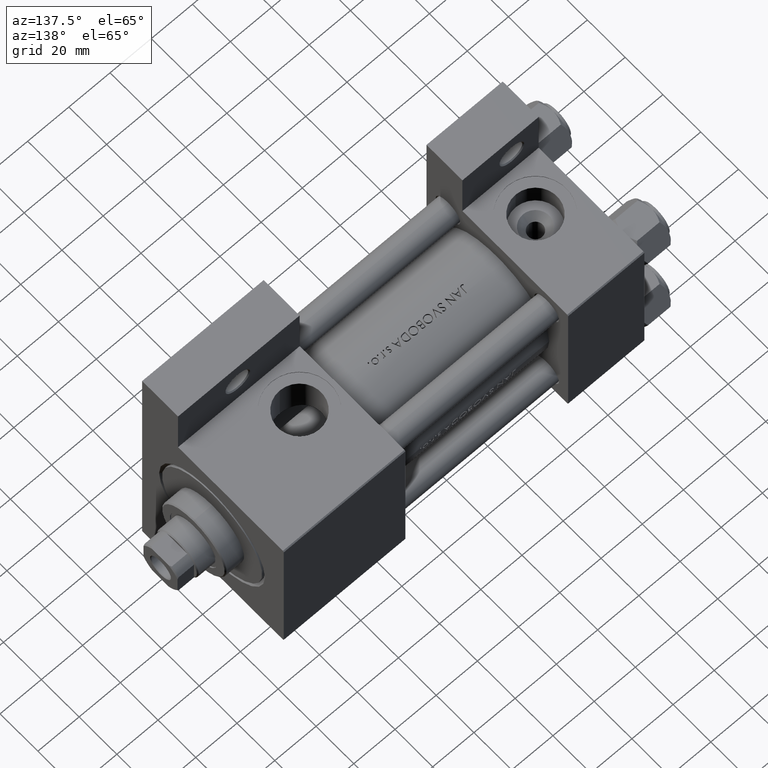
[diagram: clean part render]
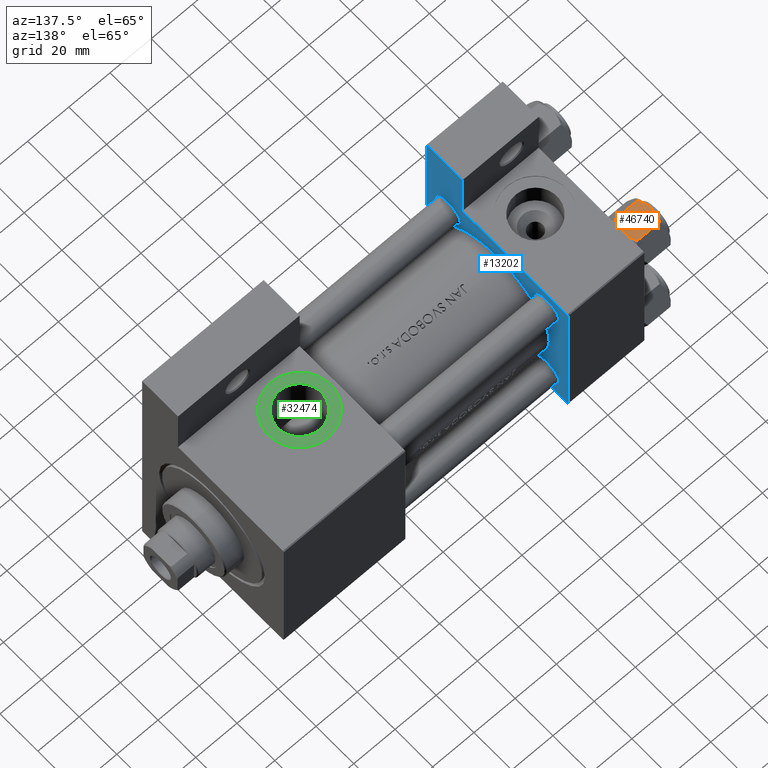
[diagram: same view with three faces highlighted in distinct colors, each labeled with its STEP entity id]
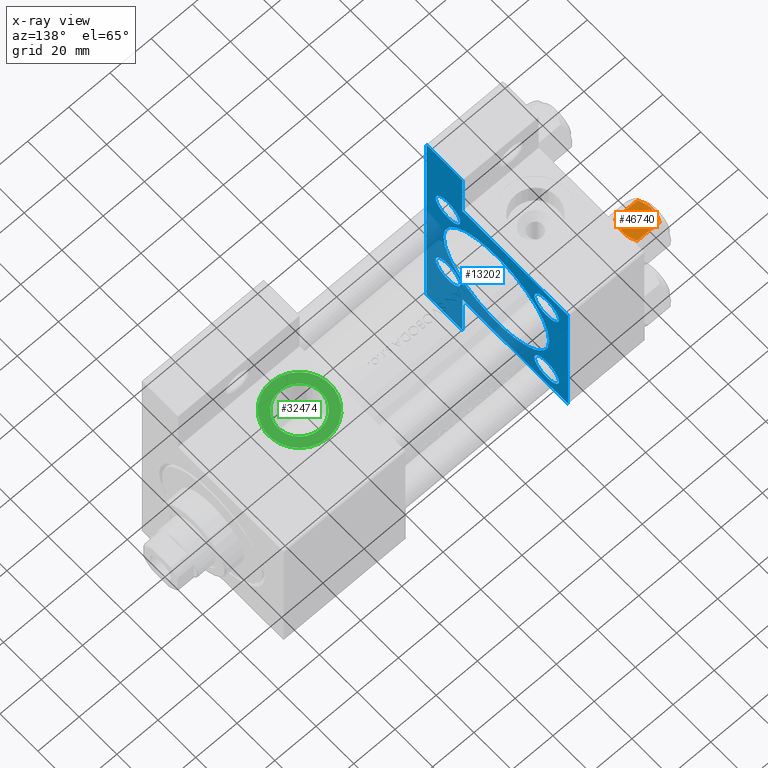
[diagram: x-ray of the same camera — body ghosted, the three highlighted faces saturated]
A machine part, auxiliary view with three faces highlighted in distinct colors.
The next image is the same camera in x-ray (body ghosted, the three faces saturated) — at least one of them is partly hidden behind the body in this view.
Their STEP definitions:

[orange] entity #46740 — the highlighted planar face has unit normal (0, -0, -1).
#1588 = ORIENTED_EDGE ( 'NONE', *, *, #47879, .F. ) ;
#3708 = CARTESIAN_POINT ( 'NONE',  ( 5.359707691559676412, -10.06321519197517844, -12.66836134619534882 ) ) ;
#4620 = CARTESIAN_POINT ( 'NONE',  ( 5.810000000000000497, -10.06321519197517667, -12.44321519197518633 ) ) ;
#5556 = CARTESIAN_POINT ( 'NONE',  ( -5.810000000000000497, -10.06321519197517844, -12.44321519197518455 ) ) ;
#6212 = CARTESIAN_POINT ( 'NONE',  ( 1.018274738099085086, -10.06321519197517311, -0.04822742080070722276 ) ) ;
#7105 = VERTEX_POINT ( 'NONE', #5556 ) ;
#7977 = CARTESIAN_POINT ( 'NONE',  ( -5.810000000000000497, -10.06321519197517844, -14.00000000000000000 ) ) ;
#8385 = CARTESIAN_POINT ( 'NONE',  ( -0.2543996698847483806, -10.06321519197517667, -14.00000000000000355 ) ) ;
#9120 = CARTESIAN_POINT ( 'NONE',  ( -2.508586450168039494, -10.06321519197517844, -13.70242473679676998 ) ) ;
#9419 = EDGE_CURVE ( 'NONE', #7105, #29311, #19201, .T. ) ;
#9822 = DIRECTION ( 'NONE',  ( -0.000000000000000000, -0.000000000000000000, 1.000000000000000000 ) ) ;
#10497 = PLANE ( 'NONE',  #21894 ) ;
#10692 = CARTESIAN_POINT ( 'NONE',  ( 5.810000000000000497, -10.06321519197517667, -12.44321519197518633 ) ) ;
#12120 = CARTESIAN_POINT ( 'NONE',  ( 1.772424303831127812, -10.06321519197517844, -0.1338870921722363216 ) ) ;
#12374 = CARTESIAN_POINT ( 'NONE',  ( 1.502314598737159820E-15, -10.06321519197518022, -14.00000000000000000 ) ) ;
#12840 = CARTESIAN_POINT ( 'NONE',  ( 5.810000000000000497, -10.06321519197517667, -14.00000000000000000 ) ) ;
#13290 = B_SPLINE_CURVE_WITH_KNOTS ( 'NONE', 3,
 ( #31778, #8385, #23583, #23834, #46713, #9120, #46472, #38775, #27804 ),
 .UNSPECIFIED., .F., .F.,
 ( 4, 2, 1, 2, 4 ),
 ( 0.02074012592819902620, 0.02149589804477579011, 0.02225167016135255749, 0.02376321439450608530, 0.02678630286081314441 ),
 .UNSPECIFIED. ) ;
#14139 = CARTESIAN_POINT ( 'NONE',  ( -5.810000000000000497, -10.06321519197517844, -1.556784808024815225 ) ) ;
#15180 = CARTESIAN_POINT ( 'NONE',  ( 5.810000000000000497, -10.06321519197517667, -1.556784808024813671 ) ) ;
#15358 = CARTESIAN_POINT ( 'NONE',  ( 2.508586450168040383, -10.06321519197517667, -0.2975752632032270806 ) ) ;
#16334 = CARTESIAN_POINT ( 'NONE',  ( 5.810000000000000497, -10.06321519197517667, -1.556784808024813671 ) ) ;
#18221 = CARTESIAN_POINT ( 'NONE',  ( -3.474497094393253604, -10.06321519197517844, -0.5726960901042740248 ) ) ;
#19201 = LINE ( 'NONE', #7977, #23925 ) ;
#19448 = DIRECTION ( 'NONE',  ( -0.000000000000000000, -0.000000000000000000, 1.000000000000000000 ) ) ;
#20325 = LINE ( 'NONE', #12840, #44711 ) ;
#21298 = ORIENTED_EDGE ( 'NONE', *, *, #39967, .F. ) ;
#21324 = EDGE_LOOP ( 'NONE', ( #1588, #25263, #41515, #21298, #47157, #24027 ) ) ;
#21652 = EDGE_CURVE ( 'NONE', #37179, #7105, #13290, .T. ) ;
#21894 = AXIS2_PLACEMENT_3D ( 'NONE', #36671, #28683, #25448 ) ;
#21965 = CARTESIAN_POINT ( 'NONE',  ( -1.020132157807625450, -10.06321519197517667, 2.398797306624178560E-15 ) ) ;
#23583 = CARTESIAN_POINT ( 'NONE',  ( -0.5112014849988886223, -10.06321519197517489, -13.99019602057109068 ) ) ;
#23834 = CARTESIAN_POINT ( 'NONE',  ( -1.018274738099085086, -10.06321519197517667, -13.95177257919929126 ) ) ;
#23925 = VECTOR ( 'NONE', #19448, 1000.000000000000000 ) ;
#24027 = ORIENTED_EDGE ( 'NONE', *, *, #21652, .F. ) ;
#25149 = CARTESIAN_POINT ( 'NONE',  ( 0.2543996698847487137, -10.06321519197517844, 2.651777813537460036E-15 ) ) ;
#25263 = ORIENTED_EDGE ( 'NONE', *, *, #35592, .T. ) ;
#25448 = DIRECTION ( 'NONE',  ( -1.000000000000000000, -1.492877345935290102E-16, 0.000000000000000000 ) ) ;
#25691 = CARTESIAN_POINT ( 'NONE',  ( -5.359707691559672860, -10.06321519197517667, -1.331638653804653405 ) ) ;
#25894 = CARTESIAN_POINT ( 'NONE',  ( 3.958929922320422179, -10.06321519197517489, -13.25786014976459803 ) ) ;
#26879 = CARTESIAN_POINT ( 'NONE',  ( 4.900668367960796523, -10.06321519197517489, -12.87844331629023209 ) ) ;
#27804 = CARTESIAN_POINT ( 'NONE',  ( -5.810000000000000497, -10.06321519197517844, -12.44321519197518455 ) ) ;
#28683 = DIRECTION ( 'NONE',  ( -1.492877345935290102E-16, 1.000000000000000000, 0.000000000000000000 ) ) ;
#29168 = CARTESIAN_POINT ( 'NONE',  ( -3.958929922320422179, -10.06321519197517667, -0.7421398502353990789 ) ) ;
#29311 = VERTEX_POINT ( 'NONE', #14139 ) ;
#29417 = FACE_OUTER_BOUND ( 'NONE', #21324, .T. ) ;
#30152 = CARTESIAN_POINT ( 'NONE',  ( -4.900668367960797411, -10.06321519197517844, -1.121556683709773683 ) ) ;
#30354 = CARTESIAN_POINT ( 'NONE',  ( 2.013954290287967019, -10.06321519197517489, -13.84298883202400532 ) ) ;
#31778 = CARTESIAN_POINT ( 'NONE',  ( 1.502314598737159820E-15, -10.06321519197518022, -14.00000000000000000 ) ) ;
#33037 = EDGE_CURVE ( 'NONE', #38834, #47873, #47541, .T. ) ;
#35576 = VERTEX_POINT ( 'NONE', #4620 ) ;
#35592 = EDGE_CURVE ( 'NONE', #35576, #47873, #20325, .T. ) ;
#36671 = CARTESIAN_POINT ( 'NONE',  ( 5.810000000000000497, -10.06321519197517667, -14.00000000000000000 ) ) ;
#37179 = VERTEX_POINT ( 'NONE', #12374 ) ;
#37355 = CARTESIAN_POINT ( 'NONE',  ( 1.020132157807625672, -10.06321519197517489, -14.00000000000000178 ) ) ;
#37899 = CARTESIAN_POINT ( 'NONE',  ( -2.013954290287966575, -10.06321519197517844, -0.1570111679759964574 ) ) ;
#38521 = CARTESIAN_POINT ( 'NONE',  ( 3.960942496020602555, -10.06321519197517667, -0.7115728323610392980 ) ) ;
#38775 = CARTESIAN_POINT ( 'NONE',  ( -4.908816193182379273, -10.06321519197517667, -12.89380709538398939 ) ) ;
#38834 = VERTEX_POINT ( 'NONE', #42910 ) ;
#39967 = EDGE_CURVE ( 'NONE', #29311, #38834, #47463, .T. ) ;
#40346 = CARTESIAN_POINT ( 'NONE',  ( 0.5112014849988887333, -10.06321519197517667, -0.009803979428911684807 ) ) ;
#41515 = ORIENTED_EDGE ( 'NONE', *, *, #33037, .F. ) ;
#41632 = CARTESIAN_POINT ( 'NONE',  ( -5.810000000000000497, -10.06321519197517844, -1.556784808024815225 ) ) ;
#41832 = CARTESIAN_POINT ( 'NONE',  ( 3.474497094393254049, -10.06321519197517667, -13.42730390989572697 ) ) ;
#42910 = CARTESIAN_POINT ( 'NONE',  ( 1.502314598737159820E-15, -10.06321519197518022, 0.000000000000000000 ) ) ;
#42985 = CARTESIAN_POINT ( 'NONE',  ( 4.908816193182379273, -10.06321519197517844, -1.106192904616004835 ) ) ;
#44711 = VECTOR ( 'NONE', #9822, 1000.000000000000000 ) ;
#45533 = CARTESIAN_POINT ( 'NONE',  ( 1.502314598737159820E-15, -10.06321519197518022, -14.00000000000000000 ) ) ;
#46472 = CARTESIAN_POINT ( 'NONE',  ( -3.960942496020602555, -10.06321519197517667, -13.28842716763895737 ) ) ;
#46713 = CARTESIAN_POINT ( 'NONE',  ( -1.772424303831128478, -10.06321519197517489, -13.86611290782776251 ) ) ;
#46740 = ADVANCED_FACE ( 'NONE', ( #29417 ), #10497, .F. ) ;
#47157 = ORIENTED_EDGE ( 'NONE', *, *, #9419, .F. ) ;
#47463 = B_SPLINE_CURVE_WITH_KNOTS ( 'NONE', 3,
 ( #41632, #25691, #30152, #29168, #18221, #37899, #21965, #48579 ),
 .UNSPECIFIED., .F., .F.,
 ( 4, 2, 2, 4 ),
 ( 0.01467889604968879505, 0.01619420351931635110, 0.01770951098894391063, 0.02074012592819902620 ),
 .UNSPECIFIED. ) ;
#47541 = B_SPLINE_CURVE_WITH_KNOTS ( 'NONE', 3,
 ( #47784, #25149, #40346, #6212, #12120, #15358, #38521, #42985, #16334 ),
 .UNSPECIFIED., .F., .F.,
 ( 4, 2, 1, 2, 4 ),
 ( 0.02074012592819902620, 0.02149589804477579011, 0.02225167016135255402, 0.02376321439450608530, 0.02678630286081314441 ),
 .UNSPECIFIED. ) ;
#47784 = CARTESIAN_POINT ( 'NONE',  ( 1.502314598737159820E-15, -10.06321519197518022, 0.000000000000000000 ) ) ;
#47873 = VERTEX_POINT ( 'NONE', #15180 ) ;
#47879 = EDGE_CURVE ( 'NONE', #35576, #37179, #48044, .T. ) ;
#48044 = B_SPLINE_CURVE_WITH_KNOTS ( 'NONE', 3,
 ( #10692, #3708, #26879, #25894, #41832, #30354, #37355, #45533 ),
 .UNSPECIFIED., .F., .F.,
 ( 4, 2, 2, 4 ),
 ( 0.01467889604968879332, 0.01619420351931635110, 0.01770951098894391063, 0.02074012592819902620 ),
 .UNSPECIFIED. ) ;
#48579 = CARTESIAN_POINT ( 'NONE',  ( 1.502314598737159820E-15, -10.06321519197518022, 0.000000000000000000 ) ) ;

[blue] entity #13202 — the highlighted planar face has unit normal (-1, 0, -0).
#362 = CARTESIAN_POINT ( 'NONE',  ( 37.00000000000001421, 63.50000000000000000, -18.50000000000000355 ) ) ;
#394 = CARTESIAN_POINT ( 'NONE',  ( 37.00000000000000000, -26.14999999999999147, -26.15000000000000924 ) ) ;
#900 = ORIENTED_EDGE ( 'NONE', *, *, #13747, .F. ) ;
#972 = CARTESIAN_POINT ( 'NONE',  ( 37.00000000000000000, -63.50000000000000000, -18.50000000000000355 ) ) ;
#1183 = CARTESIAN_POINT ( 'NONE',  ( 37.00000000000001421, 63.50000000000001421, -18.50000000000000355 ) ) ;
#1251 = ORIENTED_EDGE ( 'NONE', *, *, #14145, .F. ) ;
#1663 = DIRECTION ( 'NONE',  ( -1.000000000000000000, 0.000000000000000000, -0.000000000000000000 ) ) ;
#2061 = VERTEX_POINT ( 'NONE', #8485 ) ;
#2196 = DIRECTION ( 'NONE',  ( 0.000000000000000000, 0.000000000000000000, 1.000000000000000000 ) ) ;
#2262 = CARTESIAN_POINT ( 'NONE',  ( 37.00000000000000000, -63.49999999999998579, 26.72167621838007889 ) ) ;
#2309 = ORIENTED_EDGE ( 'NONE', *, *, #33088, .T. ) ;
#2376 = VECTOR ( 'NONE', #41222, 1000.000000000000000 ) ;
#3159 = AXIS2_PLACEMENT_3D ( 'NONE', #6832, #7816, #15297 ) ;
#3692 = DIRECTION ( 'NONE',  ( -0.000000000000000000, 1.000000000000000000, 0.000000000000000000 ) ) ;
#4139 = CARTESIAN_POINT ( 'NONE',  ( 37.00000000000000000, 26.14999999999999858, -26.15000000000000213 ) ) ;
#4272 = EDGE_LOOP ( 'NONE', ( #11643, #4685, #20367, #1251, #31225, #900, #22643, #13232, #13769, #18186 ) ) ;
#4685 = ORIENTED_EDGE ( 'NONE', *, *, #43991, .T. ) ;
#5252 = EDGE_LOOP ( 'NONE', ( #31406, #9163 ) ) ;
#6375 = CIRCLE ( 'NONE', #32650, 6.500000000000008882 ) ;
#6832 = CARTESIAN_POINT ( 'NONE',  ( 37.00000000000000000, 26.14999999999999858, 26.15000000000000213 ) ) ;
#6997 = LINE ( 'NONE', #44845, #36717 ) ;
#7228 = VERTEX_POINT ( 'NONE', #26209 ) ;
#7816 = DIRECTION ( 'NONE',  ( -1.000000000000000000, 0.000000000000000000, -0.000000000000000000 ) ) ;
#8174 = DIRECTION ( 'NONE',  ( 0.000000000000000000, 0.000000000000000000, 1.000000000000000000 ) ) ;
#8298 = EDGE_CURVE ( 'NONE', #33370, #17934, #22436, .T. ) ;
#8485 = CARTESIAN_POINT ( 'NONE',  ( 37.00000000000000000, 26.14999999999999858, -32.64999999999997726 ) ) ;
#8487 = VERTEX_POINT ( 'NONE', #972 ) ;
#8654 = DIRECTION ( 'NONE',  ( -1.000000000000000000, 0.000000000000000000, -0.000000000000000000 ) ) ;
#9163 = ORIENTED_EDGE ( 'NONE', *, *, #35247, .F. ) ;
#9365 = EDGE_CURVE ( 'NONE', #33505, #28867, #6375, .T. ) ;
#9435 = DIRECTION ( 'NONE',  ( -1.000000000000000000, 0.000000000000000000, -0.000000000000000000 ) ) ;
#10099 = VERTEX_POINT ( 'NONE', #19202 ) ;
#10211 = DIRECTION ( 'NONE',  ( 0.000000000000000000, -1.734723475976806848E-16, -1.000000000000000000 ) ) ;
#10947 = CARTESIAN_POINT ( 'NONE',  ( 37.00000000000000000, -26.14999999999999147, 26.15000000000000924 ) ) ;
#11046 = EDGE_CURVE ( 'NONE', #7228, #18376, #6997, .T. ) ;
#11294 = CARTESIAN_POINT ( 'NONE',  ( 37.00000000000000711, 0.000000000000000000, 27.50000000000000000 ) ) ;
#11643 = ORIENTED_EDGE ( 'NONE', *, *, #11046, .T. ) ;
#11965 = CARTESIAN_POINT ( 'NONE',  ( 37.00000000000000000, -26.14999999999999147, 26.15000000000000924 ) ) ;
#12654 = FACE_BOUND ( 'NONE', #33420, .T. ) ;
#12837 = DIRECTION ( 'NONE',  ( 0.000000000000000000, 0.000000000000000000, 1.000000000000000000 ) ) ;
#12894 = PLANE ( 'NONE',  #17672 ) ;
#13052 = VECTOR ( 'NONE', #28004, 1000.000000000000114 ) ;
#13202 = ADVANCED_FACE ( 'NONE', ( #42782, #12654, #43029, #46988, #13370, #17109 ), #12894, .F. ) ;
#13232 = ORIENTED_EDGE ( 'NONE', *, *, #27151, .F. ) ;
#13370 = FACE_BOUND ( 'NONE', #5252, .T. ) ;
#13631 = DIRECTION ( 'NONE',  ( 0.000000000000000000, 0.000000000000000000, 1.000000000000000000 ) ) ;
#13747 = EDGE_CURVE ( 'NONE', #37200, #40265, #22945, .T. ) ;
#13769 = ORIENTED_EDGE ( 'NONE', *, *, #8298, .F. ) ;
#14145 = EDGE_CURVE ( 'NONE', #8487, #27030, #26862, .T. ) ;
#15060 = EDGE_CURVE ( 'NONE', #38652, #48667, #44754, .T. ) ;
#15297 = DIRECTION ( 'NONE',  ( 0.000000000000000000, 0.000000000000000000, 1.000000000000000000 ) ) ;
#15604 = DIRECTION ( 'NONE',  ( 0.000000000000000000, 0.000000000000000000, 1.000000000000000000 ) ) ;
#15970 = VECTOR ( 'NONE', #33812, 1000.000000000000114 ) ;
#16419 = EDGE_LOOP ( 'NONE', ( #36624, #2309 ) ) ;
#17109 = FACE_OUTER_BOUND ( 'NONE', #4272, .T. ) ;
#17445 = LINE ( 'NONE', #21205, #24690 ) ;
#17467 = DIRECTION ( 'NONE',  ( 0.000000000000000000, -1.734723475976806848E-16, -1.000000000000000000 ) ) ;
#17662 = CARTESIAN_POINT ( 'NONE',  ( 37.00000000000000000, -63.50000000000000000, -37.49999999999999289 ) ) ;
#17672 = AXIS2_PLACEMENT_3D ( 'NONE', #28074, #8654, #20864 ) ;
#17875 = CARTESIAN_POINT ( 'NONE',  ( 37.00000000000000000, 36.99999999999999289, 37.50000000000000000 ) ) ;
#17934 = VERTEX_POINT ( 'NONE', #18090 ) ;
#17936 = DIRECTION ( 'NONE',  ( 0.000000000000000000, 0.000000000000000000, 1.000000000000000000 ) ) ;
#18077 = CARTESIAN_POINT ( 'NONE',  ( 37.00000000000000000, -26.14999999999999147, -19.65000000000000924 ) ) ;
#18090 = CARTESIAN_POINT ( 'NONE',  ( 37.00000000000000711, 37.50000000000000711, -18.50000000000000355 ) ) ;
#18186 = ORIENTED_EDGE ( 'NONE', *, *, #29259, .T. ) ;
#18376 = VERTEX_POINT ( 'NONE', #33249 ) ;
#19202 = CARTESIAN_POINT ( 'NONE',  ( 37.00000000000000000, -26.14999999999999147, -32.65000000000001279 ) ) ;
#19250 = VERTEX_POINT ( 'NONE', #18077 ) ;
#19467 = CARTESIAN_POINT ( 'NONE',  ( 37.00000000000000000, 37.49999999999999289, -37.50000000000000000 ) ) ;
#20190 = EDGE_CURVE ( 'NONE', #37550, #41651, #23668, .T. ) ;
#20367 = ORIENTED_EDGE ( 'NONE', *, *, #31022, .T. ) ;
#20372 = CARTESIAN_POINT ( 'NONE',  ( 37.00000000000000000, 26.14999999999999858, -19.65000000000002700 ) ) ;
#20633 = DIRECTION ( 'NONE',  ( 1.000000000000000000, -0.000000000000000000, 0.000000000000000000 ) ) ;
#20864 = DIRECTION ( 'NONE',  ( -0.000000000000000000, 0.000000000000000000, 1.000000000000000000 ) ) ;
#20914 = CARTESIAN_POINT ( 'NONE',  ( 37.00000000000000000, 26.14999999999999858, 26.15000000000000213 ) ) ;
#21121 = CARTESIAN_POINT ( 'NONE',  ( 37.00000000000000711, 0.000000000000000000, -0.5000000000000004441 ) ) ;
#21187 = EDGE_CURVE ( 'NONE', #28867, #33505, #44357, .T. ) ;
#21205 = CARTESIAN_POINT ( 'NONE',  ( 37.00000000000001421, 63.50000000000001421, 26.72167621838005047 ) ) ;
#22094 = AXIS2_PLACEMENT_3D ( 'NONE', #10947, #47799, #17936 ) ;
#22436 = LINE ( 'NONE', #37635, #35011 ) ;
#22559 = VERTEX_POINT ( 'NONE', #362 ) ;
#22643 = ORIENTED_EDGE ( 'NONE', *, *, #28814, .F. ) ;
#22660 = CARTESIAN_POINT ( 'NONE',  ( 37.00000000000000000, 26.14999999999999858, 32.64999999999998437 ) ) ;
#22679 = ORIENTED_EDGE ( 'NONE', *, *, #27481, .T. ) ;
#22694 = ORIENTED_EDGE ( 'NONE', *, *, #21187, .T. ) ;
#22945 = LINE ( 'NONE', #19467, #39953 ) ;
#23074 = DIRECTION ( 'NONE',  ( -1.000000000000000000, 0.000000000000000000, -0.000000000000000000 ) ) ;
#23635 = VERTEX_POINT ( 'NONE', #20372 ) ;
#23668 = CIRCLE ( 'NONE', #34005, 6.499999999999981348 ) ;
#23870 = VECTOR ( 'NONE', #35817, 1000.000000000000000 ) ;
#24690 = VECTOR ( 'NONE', #10211, 1000.000000000000000 ) ;
#24776 = CARTESIAN_POINT ( 'NONE',  ( 37.00000000000000000, 26.14999999999999858, -26.15000000000000213 ) ) ;
#25184 = ORIENTED_EDGE ( 'NONE', *, *, #46469, .T. ) ;
#25673 = VECTOR ( 'NONE', #17467, 1000.000000000000000 ) ;
#26030 = CARTESIAN_POINT ( 'NONE',  ( 37.00000000000000000, -37.50000000000000711, 37.49999999999999289 ) ) ;
#26093 = LINE ( 'NONE', #17875, #15970 ) ;
#26209 = CARTESIAN_POINT ( 'NONE',  ( 37.00000000000000000, 36.99999999999999289, 37.50000000000000000 ) ) ;
#26383 = EDGE_LOOP ( 'NONE', ( #44882, #22679 ) ) ;
#26427 = DIRECTION ( 'NONE',  ( 0.000000000000000000, -1.000000000000000000, -9.251858538542971581E-17 ) ) ;
#26862 = LINE ( 'NONE', #45766, #44719 ) ;
#27030 = VERTEX_POINT ( 'NONE', #48776 ) ;
#27151 = EDGE_CURVE ( 'NONE', #17934, #22559, #39062, .T. ) ;
#27277 = LINE ( 'NONE', #34998, #13052 ) ;
#27481 = EDGE_CURVE ( 'NONE', #41651, #37550, #42179, .T. ) ;
#27907 = CIRCLE ( 'NONE', #36665, 6.500000000000002665 ) ;
#28004 = DIRECTION ( 'NONE',  ( -0.000000000000000000, -0.7071067811865474617, -0.7071067811865474617 ) ) ;
#28074 = CARTESIAN_POINT ( 'NONE',  ( 37.00000000000000000, 0.000000000000000000, 0.000000000000000000 ) ) ;
#28078 = CARTESIAN_POINT ( 'NONE',  ( 37.00000000000000711, 0.000000000000000000, -0.5000000000000004441 ) ) ;
#28291 = CARTESIAN_POINT ( 'NONE',  ( 37.00000000000001421, 63.50000000000000000, -37.50000000000002132 ) ) ;
#28814 = EDGE_CURVE ( 'NONE', #22559, #37200, #17445, .T. ) ;
#28867 = VERTEX_POINT ( 'NONE', #28898 ) ;
#28898 = CARTESIAN_POINT ( 'NONE',  ( 37.00000000000000000, -26.14999999999999147, 32.65000000000001990 ) ) ;
#29259 = EDGE_CURVE ( 'NONE', #33370, #7228, #26093, .T. ) ;
#29658 = AXIS2_PLACEMENT_3D ( 'NONE', #21121, #20633, #13631 ) ;
#30132 = DIRECTION ( 'NONE',  ( 0.000000000000000000, 0.000000000000000000, -1.000000000000000000 ) ) ;
#31022 = EDGE_CURVE ( 'NONE', #45173, #27030, #44938, .T. ) ;
#31077 = DIRECTION ( 'NONE',  ( 0.000000000000000000, 0.000000000000000000, 1.000000000000000000 ) ) ;
#31225 = ORIENTED_EDGE ( 'NONE', *, *, #37655, .T. ) ;
#31325 = DIRECTION ( 'NONE',  ( 1.000000000000000000, -0.000000000000000000, 0.000000000000000000 ) ) ;
#31376 = CIRCLE ( 'NONE', #38563, 6.499999999999974243 ) ;
#31406 = ORIENTED_EDGE ( 'NONE', *, *, #15060, .F. ) ;
#31674 = CARTESIAN_POINT ( 'NONE',  ( 37.00000000000000000, -37.50000000000000711, 36.99999999999999289 ) ) ;
#32650 = AXIS2_PLACEMENT_3D ( 'NONE', #11965, #42355, #34383 ) ;
#33088 = EDGE_CURVE ( 'NONE', #19250, #10099, #27907, .T. ) ;
#33249 = CARTESIAN_POINT ( 'NONE',  ( 37.00000000000000000, -37.00000000000000711, 37.49999999999999289 ) ) ;
#33370 = VERTEX_POINT ( 'NONE', #44138 ) ;
#33420 = EDGE_LOOP ( 'NONE', ( #40365, #25184 ) ) ;
#33505 = VERTEX_POINT ( 'NONE', #41893 ) ;
#33812 = DIRECTION ( 'NONE',  ( 0.000000000000000000, -0.7071067811865474617, 0.7071067811865474617 ) ) ;
#34005 = AXIS2_PLACEMENT_3D ( 'NONE', #20914, #9435, #2196 ) ;
#34286 = DIRECTION ( 'NONE',  ( -1.000000000000000000, 0.000000000000000000, -0.000000000000000000 ) ) ;
#34383 = DIRECTION ( 'NONE',  ( 0.000000000000000000, 0.000000000000000000, 1.000000000000000000 ) ) ;
#34737 = CARTESIAN_POINT ( 'NONE',  ( 37.00000000000000000, 26.14999999999999858, 19.65000000000002345 ) ) ;
#34998 = CARTESIAN_POINT ( 'NONE',  ( 37.00000000000000000, -37.50000000000000711, 36.99999999999999289 ) ) ;
#35011 = VECTOR ( 'NONE', #30132, 1000.000000000000000 ) ;
#35141 = AXIS2_PLACEMENT_3D ( 'NONE', #28078, #31325, #8174 ) ;
#35178 = CIRCLE ( 'NONE', #46274, 6.499999999999974243 ) ;
#35247 = EDGE_CURVE ( 'NONE', #48667, #38652, #43869, .T. ) ;
#35316 = CARTESIAN_POINT ( 'NONE',  ( 37.00000000000000000, -26.14999999999999147, -26.15000000000000924 ) ) ;
#35817 = DIRECTION ( 'NONE',  ( 2.668805347656626678E-16, 1.000000000000000000, 0.000000000000000000 ) ) ;
#36104 = ORIENTED_EDGE ( 'NONE', *, *, #9365, .T. ) ;
#36323 = EDGE_CURVE ( 'NONE', #2061, #23635, #35178, .T. ) ;
#36407 = LINE ( 'NONE', #2262, #25673 ) ;
#36443 = EDGE_LOOP ( 'NONE', ( #36104, #22694 ) ) ;
#36624 = ORIENTED_EDGE ( 'NONE', *, *, #39121, .T. ) ;
#36665 = AXIS2_PLACEMENT_3D ( 'NONE', #394, #34286, #15604 ) ;
#36717 = VECTOR ( 'NONE', #26427, 1000.000000000000000 ) ;
#37200 = VERTEX_POINT ( 'NONE', #28291 ) ;
#37550 = VERTEX_POINT ( 'NONE', #34737 ) ;
#37635 = CARTESIAN_POINT ( 'NONE',  ( 37.00000000000000000, 37.49999999999999289, 37.50000000000000000 ) ) ;
#37655 = EDGE_CURVE ( 'NONE', #8487, #40265, #36407, .T. ) ;
#38563 = AXIS2_PLACEMENT_3D ( 'NONE', #24776, #46932, #12837 ) ;
#38652 = VERTEX_POINT ( 'NONE', #11294 ) ;
#39062 = LINE ( 'NONE', #1183, #23870 ) ;
#39121 = EDGE_CURVE ( 'NONE', #10099, #19250, #43999, .T. ) ;
#39930 = CARTESIAN_POINT ( 'NONE',  ( 37.00000000000000711, 3.429011037612589276E-15, -28.50000000000000000 ) ) ;
#39953 = VECTOR ( 'NONE', #41873, 1000.000000000000000 ) ;
#40265 = VERTEX_POINT ( 'NONE', #17662 ) ;
#40365 = ORIENTED_EDGE ( 'NONE', *, *, #36323, .T. ) ;
#41222 = DIRECTION ( 'NONE',  ( 0.000000000000000000, 9.251858538542971581E-17, -1.000000000000000000 ) ) ;
#41651 = VERTEX_POINT ( 'NONE', #22660 ) ;
#41873 = DIRECTION ( 'NONE',  ( 0.000000000000000000, -1.000000000000000000, -9.251858538542972814E-17 ) ) ;
#41893 = CARTESIAN_POINT ( 'NONE',  ( 37.00000000000000000, -26.14999999999999147, 19.65000000000000213 ) ) ;
#42179 = CIRCLE ( 'NONE', #3159, 6.499999999999981348 ) ;
#42355 = DIRECTION ( 'NONE',  ( -1.000000000000000000, 0.000000000000000000, -0.000000000000000000 ) ) ;
#42782 = FACE_BOUND ( 'NONE', #16419, .T. ) ;
#43029 = FACE_BOUND ( 'NONE', #36443, .T. ) ;
#43869 = CIRCLE ( 'NONE', #35141, 28.00000000000000000 ) ;
#43991 = EDGE_CURVE ( 'NONE', #18376, #45173, #27277, .T. ) ;
#43999 = CIRCLE ( 'NONE', #48804, 6.500000000000002665 ) ;
#44138 = CARTESIAN_POINT ( 'NONE',  ( 37.00000000000000000, 37.49999999999999289, 37.00000000000000000 ) ) ;
#44357 = CIRCLE ( 'NONE', #22094, 6.500000000000008882 ) ;
#44719 = VECTOR ( 'NONE', #3692, 1000.000000000000000 ) ;
#44754 = CIRCLE ( 'NONE', #29658, 28.00000000000000000 ) ;
#44845 = CARTESIAN_POINT ( 'NONE',  ( 37.00000000000000000, 37.49999999999999289, 37.50000000000000000 ) ) ;
#44882 = ORIENTED_EDGE ( 'NONE', *, *, #20190, .T. ) ;
#44938 = LINE ( 'NONE', #26030, #2376 ) ;
#45173 = VERTEX_POINT ( 'NONE', #31674 ) ;
#45468 = DIRECTION ( 'NONE',  ( 0.000000000000000000, 0.000000000000000000, 1.000000000000000000 ) ) ;
#45766 = CARTESIAN_POINT ( 'NONE',  ( 37.00000000000000000, -63.49999999999998579, -18.50000000000000355 ) ) ;
#46274 = AXIS2_PLACEMENT_3D ( 'NONE', #4139, #23074, #45468 ) ;
#46469 = EDGE_CURVE ( 'NONE', #23635, #2061, #31376, .T. ) ;
#46932 = DIRECTION ( 'NONE',  ( -1.000000000000000000, 0.000000000000000000, -0.000000000000000000 ) ) ;
#46988 = FACE_BOUND ( 'NONE', #26383, .T. ) ;
#47799 = DIRECTION ( 'NONE',  ( -1.000000000000000000, 0.000000000000000000, -0.000000000000000000 ) ) ;
#48667 = VERTEX_POINT ( 'NONE', #39930 ) ;
#48776 = CARTESIAN_POINT ( 'NONE',  ( 37.00000000000000000, -37.50000000000000000, -18.50000000000000355 ) ) ;
#48804 = AXIS2_PLACEMENT_3D ( 'NONE', #35316, #1663, #31077 ) ;

[green] entity #32474 — the highlighted planar face has unit normal (0, -0, 1).
#323 = DIRECTION ( 'NONE',  ( 0.000000000000000000, 8.673617379884036705E-17, -1.000000000000000000 ) ) ;
#561 = PLANE ( 'NONE',  #19967 ) ;
#1373 = ORIENTED_EDGE ( 'NONE', *, *, #27943, .F. ) ;
#3820 = CARTESIAN_POINT ( 'NONE',  ( 133.0000000000000000, -37.29999999999999716, 3.486794186713383443E-15 ) ) ;
#7132 = ORIENTED_EDGE ( 'NONE', *, *, #39679, .T. ) ;
#7858 = EDGE_CURVE ( 'NONE', #37431, #13980, #36603, .T. ) ;
#7972 = CARTESIAN_POINT ( 'NONE',  ( 133.0000000000000000, -37.29999999999999716, 3.486794186713383443E-15 ) ) ;
#8762 = AXIS2_PLACEMENT_3D ( 'NONE', #16784, #36213, #44392 ) ;
#9224 = CARTESIAN_POINT ( 'NONE',  ( 133.0000000000000000, -37.29999999999999716, 3.486794186713383443E-15 ) ) ;
#11544 = DIRECTION ( 'NONE',  ( 0.000000000000000000, -1.000000000000000000, -8.673617379884036705E-17 ) ) ;
#12741 = EDGE_LOOP ( 'NONE', ( #45707, #7132 ) ) ;
#13980 = VERTEX_POINT ( 'NONE', #17413 ) ;
#14916 = CARTESIAN_POINT ( 'NONE',  ( 133.0000000000000000, -37.29999999999999716, -15.00000000000002132 ) ) ;
#16011 = EDGE_CURVE ( 'NONE', #48494, #23354, #24702, .T. ) ;
#16784 = CARTESIAN_POINT ( 'NONE',  ( 133.0000000000000000, -37.29999999999999716, 3.486794186713383443E-15 ) ) ;
#17413 = CARTESIAN_POINT ( 'NONE',  ( 133.0000000000000000, -37.29999999999999716, -10.47999999999998266 ) ) ;
#17540 = AXIS2_PLACEMENT_3D ( 'NONE', #7972, #23658, #41856 ) ;
#19967 = AXIS2_PLACEMENT_3D ( 'NONE', #3820, #34467, #323 ) ;
#20336 = ORIENTED_EDGE ( 'NONE', *, *, #7858, .F. ) ;
#22523 = FACE_OUTER_BOUND ( 'NONE', #12741, .T. ) ;
#23354 = VERTEX_POINT ( 'NONE', #48010 ) ;
#23363 = AXIS2_PLACEMENT_3D ( 'NONE', #45641, #11544, #36970 ) ;
#23658 = DIRECTION ( 'NONE',  ( 0.000000000000000000, -1.000000000000000000, -8.673617379884036705E-17 ) ) ;
#24702 = CIRCLE ( 'NONE', #17540, 15.00000000000002487 ) ;
#27943 = EDGE_CURVE ( 'NONE', #13980, #37431, #35816, .T. ) ;
#30498 = CIRCLE ( 'NONE', #23363, 15.00000000000002487 ) ;
#32474 = ADVANCED_FACE ( 'NONE', ( #34713, #22523 ), #561, .T. ) ;
#33241 = CARTESIAN_POINT ( 'NONE',  ( 133.0000000000000000, -37.29999999999999716, 10.47999999999998977 ) ) ;
#34467 = DIRECTION ( 'NONE',  ( 0.000000000000000000, -1.000000000000000000, -8.673617379884036705E-17 ) ) ;
#34713 = FACE_BOUND ( 'NONE', #40182, .T. ) ;
#35816 = CIRCLE ( 'NONE', #45354, 10.47999999999998622 ) ;
#36213 = DIRECTION ( 'NONE',  ( 0.000000000000000000, -1.000000000000000000, -8.673617379884036705E-17 ) ) ;
#36603 = CIRCLE ( 'NONE', #8762, 10.47999999999998622 ) ;
#36970 = DIRECTION ( 'NONE',  ( 0.000000000000000000, 0.000000000000000000, -1.000000000000000000 ) ) ;
#37431 = VERTEX_POINT ( 'NONE', #33241 ) ;
#39679 = EDGE_CURVE ( 'NONE', #23354, #48494, #30498, .T. ) ;
#40110 = DIRECTION ( 'NONE',  ( 0.000000000000000000, -1.000000000000000000, -8.673617379884036705E-17 ) ) ;
#40182 = EDGE_LOOP ( 'NONE', ( #1373, #20336 ) ) ;
#41856 = DIRECTION ( 'NONE',  ( 0.000000000000000000, 0.000000000000000000, -1.000000000000000000 ) ) ;
#43109 = DIRECTION ( 'NONE',  ( 0.000000000000000000, 0.000000000000000000, -1.000000000000000000 ) ) ;
#44392 = DIRECTION ( 'NONE',  ( 0.000000000000000000, 0.000000000000000000, -1.000000000000000000 ) ) ;
#45354 = AXIS2_PLACEMENT_3D ( 'NONE', #9224, #40110, #43109 ) ;
#45641 = CARTESIAN_POINT ( 'NONE',  ( 133.0000000000000000, -37.29999999999999716, 3.486794186713383443E-15 ) ) ;
#45707 = ORIENTED_EDGE ( 'NONE', *, *, #16011, .T. ) ;
#48010 = CARTESIAN_POINT ( 'NONE',  ( 133.0000000000000000, -37.29999999999999716, 15.00000000000002842 ) ) ;
#48494 = VERTEX_POINT ( 'NONE', #14916 ) ;